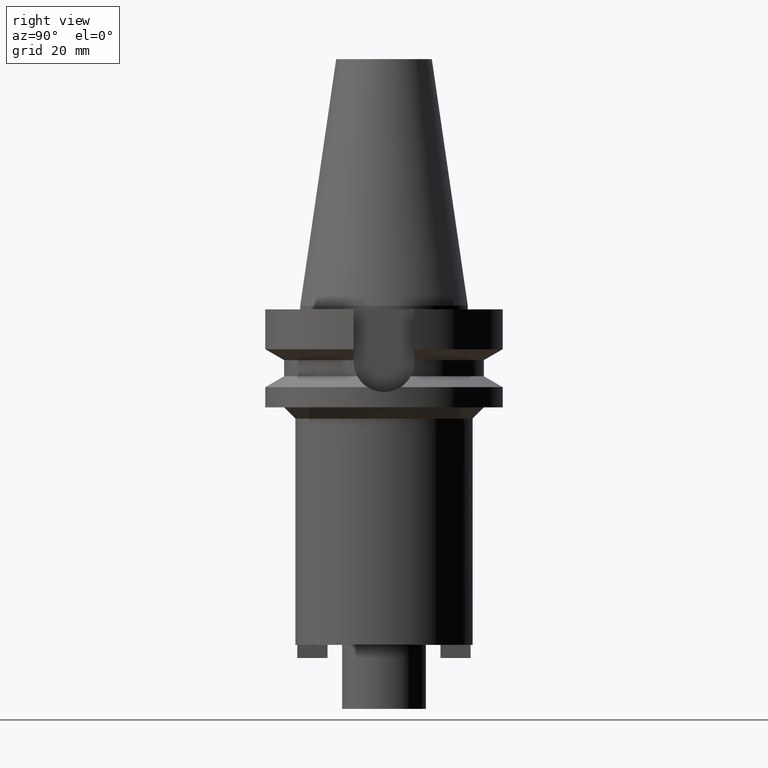
[diagram: clean part render]
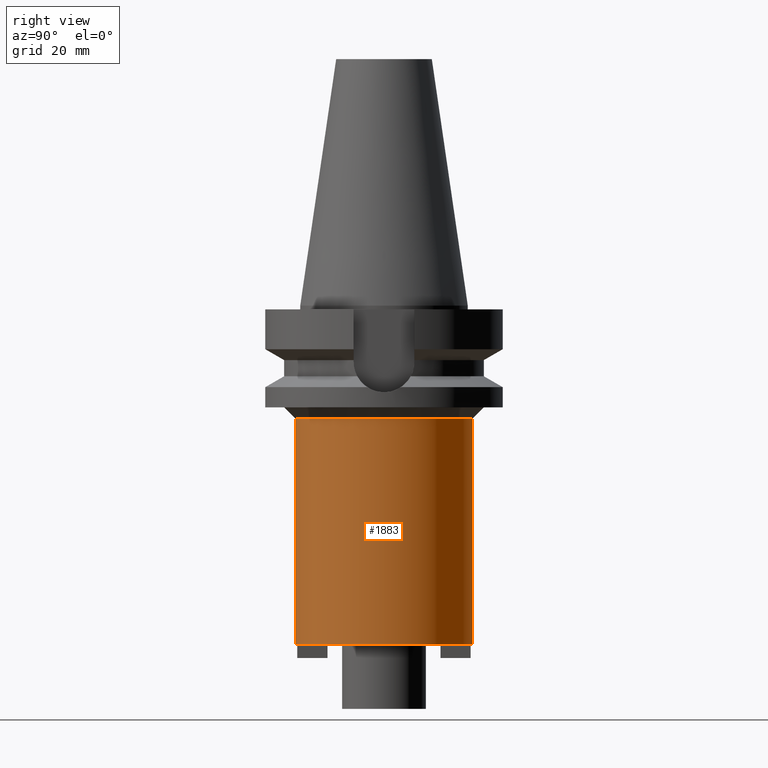
[diagram: same view with one face highlighted and labeled with its STEP entity id]
A machine part, right view. The second image highlights one B-rep face of the part: STEP entity #1883.
In plain terms, the highlighted cylindrical surface (partial cylindrical patch) has radius 23.5 mm, axis along (0, 0, -1).
Its self-contained STEP definition (entity closure, byte-faithful):
#683=CARTESIAN_POINT('',(0.E0,0.E0,-3.E1));
#684=DIRECTION('',(0.E0,0.E0,-1.E0));
#685=DIRECTION('',(0.E0,1.E0,0.E0));
#686=AXIS2_PLACEMENT_3D('',#683,#684,#685);
#691=DIRECTION('',(0.E0,0.E0,-1.E0));
#692=VECTOR('',#691,6.E1);
#693=CARTESIAN_POINT('',(0.E0,2.35E1,-3.E1));
#694=LINE('',#693,#692);
#698=DIRECTION('',(0.E0,0.E0,-1.E0));
#699=VECTOR('',#698,6.E1);
#700=CARTESIAN_POINT('',(0.E0,-2.35E1,-3.E1));
#701=LINE('',#700,#699);
#705=CARTESIAN_POINT('',(0.E0,2.131130359876E-14,-9.E1));
#706=DIRECTION('',(0.E0,0.E0,1.E0));
#707=DIRECTION('',(0.E0,-1.E0,0.E0));
#708=AXIS2_PLACEMENT_3D('',#705,#706,#707);
#1269=CARTESIAN_POINT('',(0.E0,-2.35E1,-9.E1));
#1270=CARTESIAN_POINT('',(0.E0,2.35E1,-9.E1));
#1271=VERTEX_POINT('',#1269);
#1272=VERTEX_POINT('',#1270);
#1289=CARTESIAN_POINT('',(0.E0,2.35E1,-3.E1));
#1290=VERTEX_POINT('',#1289);
#1291=CARTESIAN_POINT('',(0.E0,-2.35E1,-3.E1));
#1292=VERTEX_POINT('',#1291);
#1869=CARTESIAN_POINT('',(0.E0,2.131130359876E-14,7.402E1));
#1870=DIRECTION('',(0.E0,0.E0,-1.E0));
#1871=DIRECTION('',(0.E0,-1.E0,0.E0));
#1872=AXIS2_PLACEMENT_3D('',#1869,#1870,#1871);
#1873=CYLINDRICAL_SURFACE('',#1872,2.35E1);
#1875=ORIENTED_EDGE('',*,*,#1874,.T.);
#1877=ORIENTED_EDGE('',*,*,#1876,.F.);
#1879=ORIENTED_EDGE('',*,*,#1878,.F.);
#1880=ORIENTED_EDGE('',*,*,#1862,.F.);
#1881=EDGE_LOOP('',(#1875,#1877,#1879,#1880));
#1882=FACE_OUTER_BOUND('',#1881,.F.);
#687=CIRCLE('',#686,2.35E1);
#709=CIRCLE('',#708,2.35E1);
#1862=EDGE_CURVE('',#1290,#1292,#687,.T.);
#1874=EDGE_CURVE('',#1290,#1272,#694,.T.);
#1876=EDGE_CURVE('',#1271,#1272,#709,.T.);
#1878=EDGE_CURVE('',#1292,#1271,#701,.T.);
#1883=ADVANCED_FACE('',(#1882),#1873,.T.);